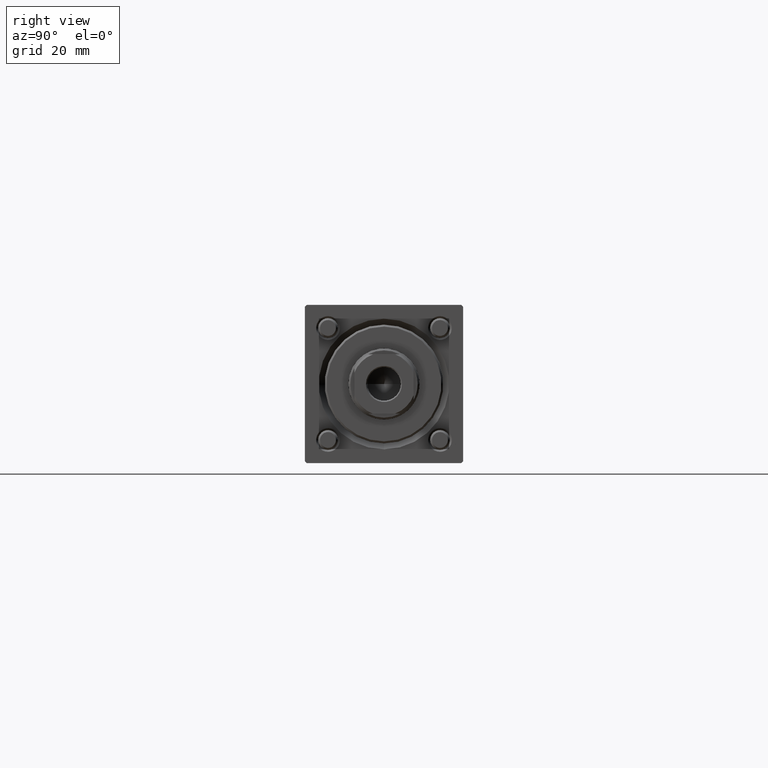
[diagram: clean part render]
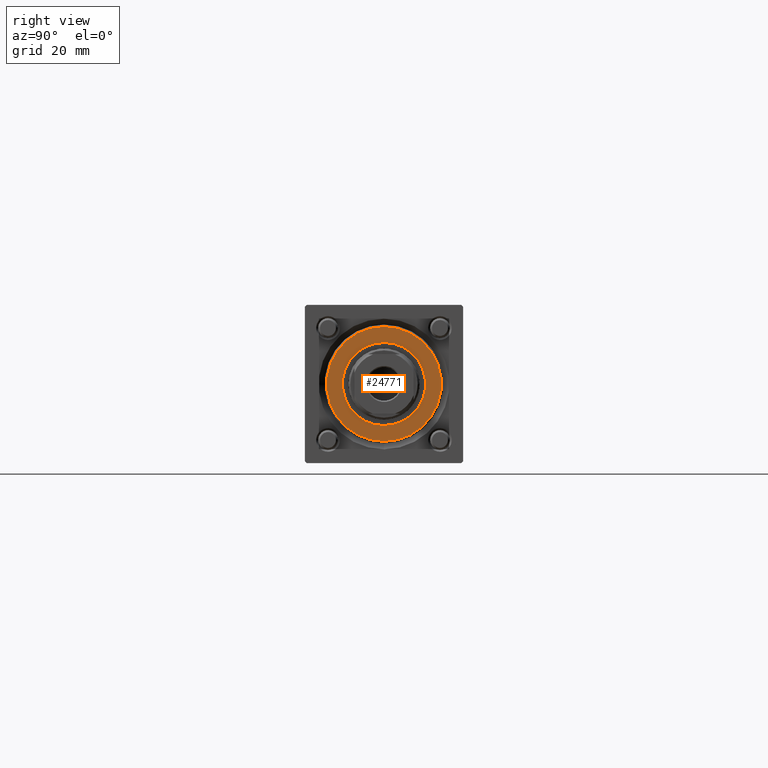
[diagram: same view with one face highlighted and labeled with its STEP entity id]
A machine part, right view. The second image highlights one B-rep face of the part: STEP entity #24771.
In plain terms, the highlighted planar face has unit normal (1, 0, 0).
Its self-contained STEP definition (entity closure, byte-faithful):
#1580 = CARTESIAN_POINT ( 'NONE',  ( 0.000000000000000000, 0.000000000000000000, 35.70000000000000284 ) ) ;
#1865 = DIRECTION ( 'NONE',  ( 0.000000000000000000, 0.000000000000000000, 1.000000000000000000 ) ) ;
#3216 = AXIS2_PLACEMENT_3D ( 'NONE', #53193, #1865, #5311 ) ;
#3499 = EDGE_LOOP ( 'NONE', ( #44833, #16427 ) ) ;
#3568 = CARTESIAN_POINT ( 'NONE',  ( 14.49999999999999112, 1.806354028742345013E-15, 35.70000000000000284 ) ) ;
#3939 = CARTESIAN_POINT ( 'NONE',  ( 10.50000000000000000, 0.000000000000000000, 35.70000000000000284 ) ) ;
#5311 = DIRECTION ( 'NONE',  ( 1.000000000000000000, 0.000000000000000000, -0.000000000000000000 ) ) ;
#5591 = FACE_OUTER_BOUND ( 'NONE', #7616, .T. ) ;
#5699 = CIRCLE ( 'NONE', #14837, 10.50000000000000000 ) ;
#5882 = FACE_BOUND ( 'NONE', #3499, .T. ) ;
#7616 = EDGE_LOOP ( 'NONE', ( #28258, #52540 ) ) ;
#10729 = CARTESIAN_POINT ( 'NONE',  ( 0.000000000000000000, 0.000000000000000000, 35.70000000000000284 ) ) ;
#12280 = EDGE_CURVE ( 'NONE', #18507, #18220, #5699, .T. ) ;
#14837 = AXIS2_PLACEMENT_3D ( 'NONE', #10729, #28209, #45692 ) ;
#15499 = VERTEX_POINT ( 'NONE', #26753 ) ;
#16427 = ORIENTED_EDGE ( 'NONE', *, *, #31908, .F. ) ;
#18220 = VERTEX_POINT ( 'NONE', #30941 ) ;
#18507 = VERTEX_POINT ( 'NONE', #3939 ) ;
#19450 = EDGE_CURVE ( 'NONE', #15499, #30541, #25155, .T. ) ;
#20756 = AXIS2_PLACEMENT_3D ( 'NONE', #1580, #45431, #44853 ) ;
#24677 = DIRECTION ( 'NONE',  ( 1.000000000000000000, 0.000000000000000000, 0.000000000000000000 ) ) ;
#24771 = ADVANCED_FACE ( 'NONE', ( #5882, #5591 ), #36547, .T. ) ;
#25155 = CIRCLE ( 'NONE', #50782, 14.49999999999999112 ) ;
#26753 = CARTESIAN_POINT ( 'NONE',  ( -14.49999999999999112, 0.000000000000000000, 35.70000000000000284 ) ) ;
#28209 = DIRECTION ( 'NONE',  ( 0.000000000000000000, 0.000000000000000000, 1.000000000000000000 ) ) ;
#28258 = ORIENTED_EDGE ( 'NONE', *, *, #19450, .T. ) ;
#28988 = DIRECTION ( 'NONE',  ( 0.000000000000000000, 0.000000000000000000, 1.000000000000000000 ) ) ;
#30541 = VERTEX_POINT ( 'NONE', #3568 ) ;
#30941 = CARTESIAN_POINT ( 'NONE',  ( -10.50000000000000000, 1.285879139104720831E-15, 35.70000000000000284 ) ) ;
#31908 = EDGE_CURVE ( 'NONE', #18220, #18507, #41802, .T. ) ;
#34486 = DIRECTION ( 'NONE',  ( 0.000000000000000000, 0.000000000000000000, 1.000000000000000000 ) ) ;
#36547 = PLANE ( 'NONE',  #3216 ) ;
#40718 = CIRCLE ( 'NONE', #43468, 14.49999999999999112 ) ;
#41802 = CIRCLE ( 'NONE', #20756, 10.50000000000000000 ) ;
#43468 = AXIS2_PLACEMENT_3D ( 'NONE', #56554, #34486, #56272 ) ;
#44833 = ORIENTED_EDGE ( 'NONE', *, *, #12280, .F. ) ;
#44853 = DIRECTION ( 'NONE',  ( 1.000000000000000000, 0.000000000000000000, 0.000000000000000000 ) ) ;
#45431 = DIRECTION ( 'NONE',  ( 0.000000000000000000, 0.000000000000000000, 1.000000000000000000 ) ) ;
#45692 = DIRECTION ( 'NONE',  ( 1.000000000000000000, 0.000000000000000000, 0.000000000000000000 ) ) ;
#50782 = AXIS2_PLACEMENT_3D ( 'NONE', #56472, #28988, #24677 ) ;
#52446 = EDGE_CURVE ( 'NONE', #30541, #15499, #40718, .T. ) ;
#52540 = ORIENTED_EDGE ( 'NONE', *, *, #52446, .T. ) ;
#53193 = CARTESIAN_POINT ( 'NONE',  ( 0.000000000000000000, 0.000000000000000000, 35.70000000000000284 ) ) ;
#56272 = DIRECTION ( 'NONE',  ( 1.000000000000000000, 0.000000000000000000, 0.000000000000000000 ) ) ;
#56472 = CARTESIAN_POINT ( 'NONE',  ( 0.000000000000000000, 0.000000000000000000, 35.70000000000000284 ) ) ;
#56554 = CARTESIAN_POINT ( 'NONE',  ( 0.000000000000000000, 0.000000000000000000, 35.70000000000000284 ) ) ;